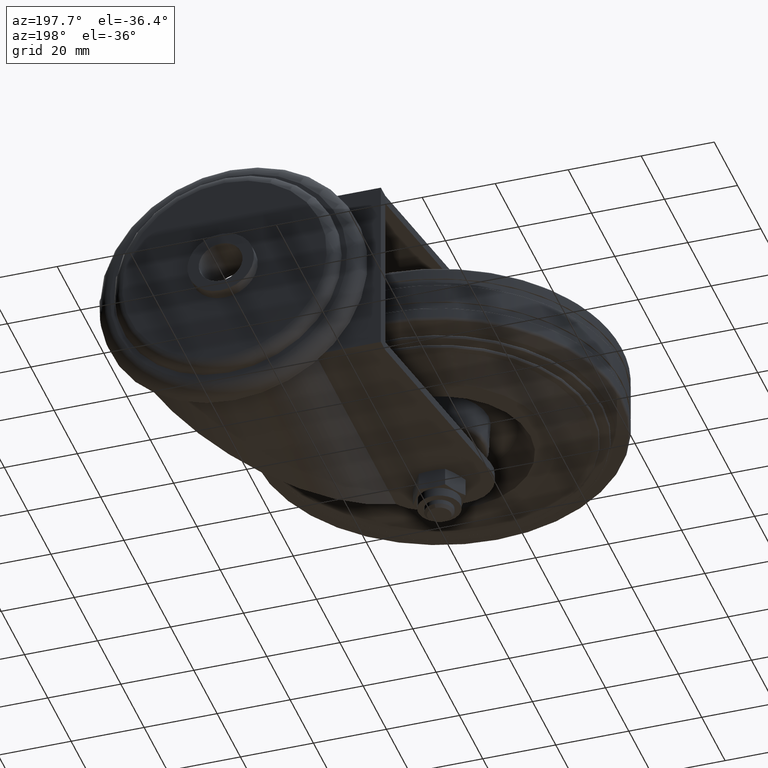
[diagram: clean part render]
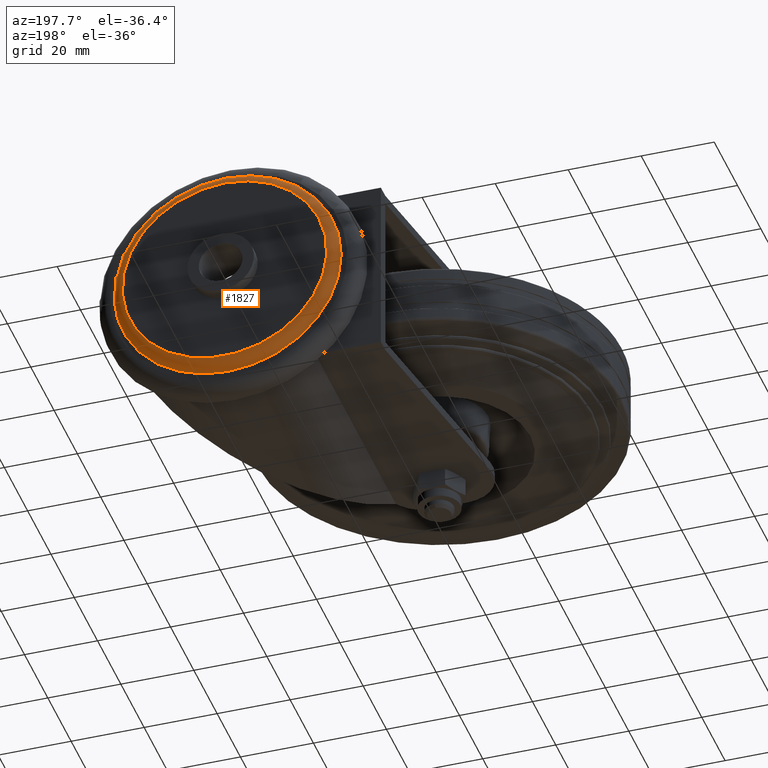
[diagram: same view with one face highlighted and labeled with its STEP entity id]
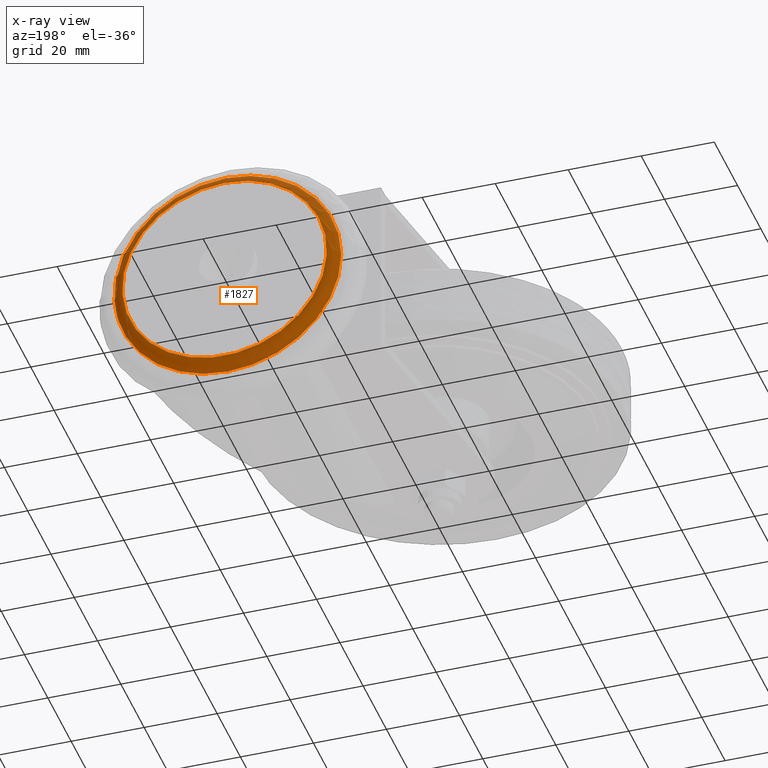
[diagram: x-ray of the same camera — body ghosted, the highlighted face saturated]
A machine part, auxiliary view. The second image highlights one B-rep face of the part: STEP entity #1827.
The next image is the same camera in x-ray: the body ghosted, the highlighted face saturated — about 0% of this face is hidden behind the body in this view.
In plain terms, the highlighted toroidal blend (fillet) surface has major radius 28.025 mm and minor (blend) radius 3 mm.
Its self-contained STEP definition (entity closure, byte-faithful):
#160=TOROIDAL_SURFACE('',#2093,28.025,3.);
#283=FACE_OUTER_BOUND('',#418,.T.);
#418=EDGE_LOOP('',(#1380,#1381,#1382,#1383));
#563=CIRCLE('',#2092,28.025);
#564=CIRCLE('',#2094,31.025);
#565=CIRCLE('',#2095,3.);
#874=VERTEX_POINT('',#3071);
#875=VERTEX_POINT('',#3074);
#1056=EDGE_CURVE('',#874,#874,#563,.T.);
#1057=EDGE_CURVE('',#875,#875,#564,.T.);
#1058=EDGE_CURVE('',#875,#874,#565,.T.);
#1380=ORIENTED_EDGE('',*,*,#1057,.F.);
#1381=ORIENTED_EDGE('',*,*,#1058,.T.);
#1382=ORIENTED_EDGE('',*,*,#1056,.T.);
#1383=ORIENTED_EDGE('',*,*,#1058,.F.);
#1827=ADVANCED_FACE('',(#283),#160,.T.);
#2092=AXIS2_PLACEMENT_3D('',#3072,#2458,#2459);
#2093=AXIS2_PLACEMENT_3D('',#3073,#2460,#2461);
#2094=AXIS2_PLACEMENT_3D('',#3075,#2462,#2463);
#2095=AXIS2_PLACEMENT_3D('',#3076,#2464,#2465);
#2458=DIRECTION('center_axis',(0.,-1.,0.));
#2459=DIRECTION('ref_axis',(0.,0.,-1.));
#2460=DIRECTION('center_axis',(0.,-1.,0.));
#2461=DIRECTION('ref_axis',(0.,0.,-1.));
#2462=DIRECTION('center_axis',(0.,-1.,0.));
#2463=DIRECTION('ref_axis',(0.,0.,-1.));
#2464=DIRECTION('center_axis',(-1.,0.,-1.43139149025E-16));
#2465=DIRECTION('ref_axis',(-1.43139149025E-16,0.,1.));
#3071=CARTESIAN_POINT('',(35.,74.7,28.025));
#3072=CARTESIAN_POINT('Origin',(35.,74.7,0.));
#3073=CARTESIAN_POINT('Origin',(35.,71.7,0.));
#3074=CARTESIAN_POINT('',(35.,71.7,31.025));
#3075=CARTESIAN_POINT('Origin',(35.,71.7,0.));
#3076=CARTESIAN_POINT('Origin',(35.,71.7,28.025));